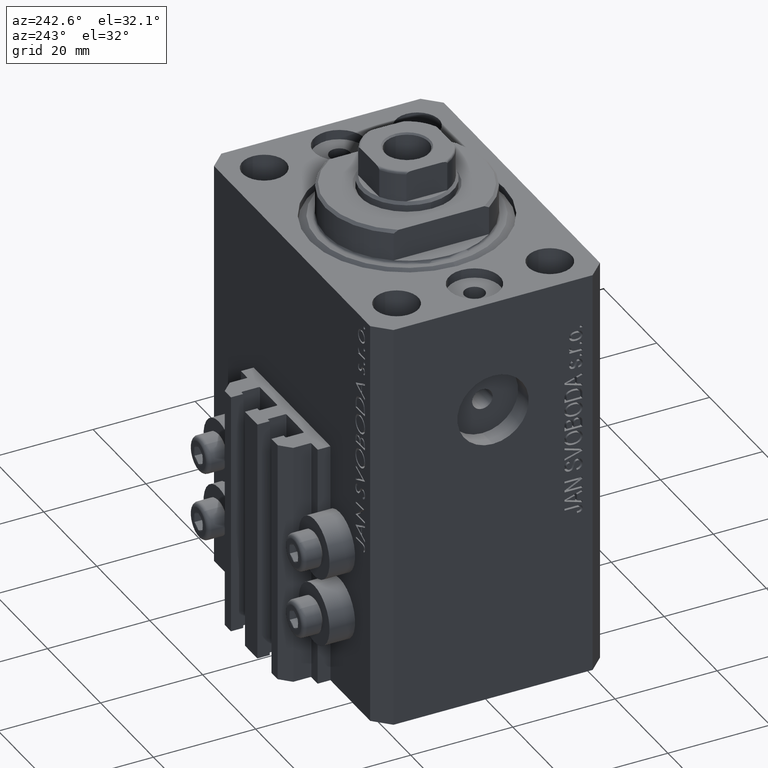
[diagram: clean part render]
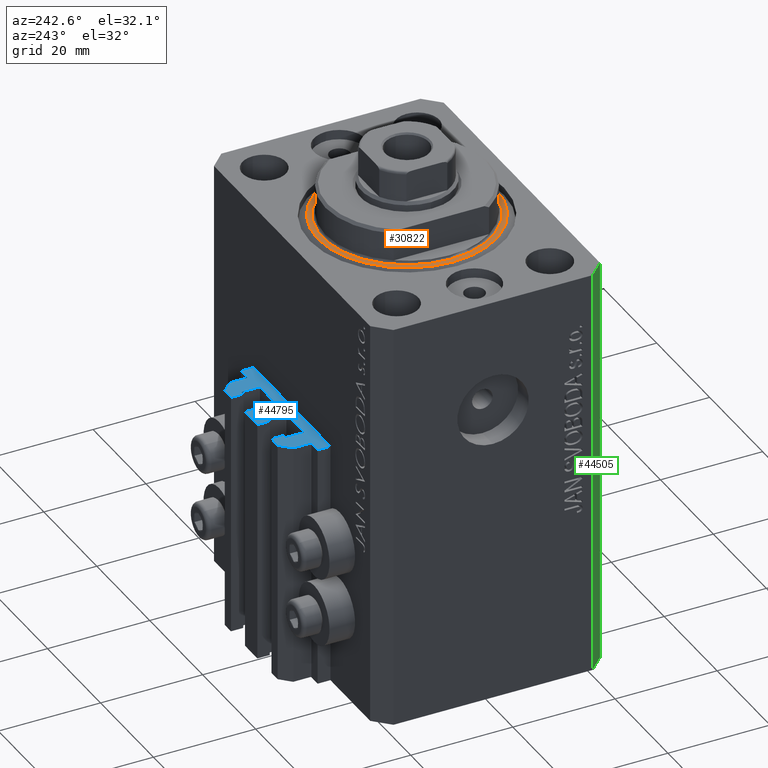
[diagram: same view with three faces highlighted in distinct colors, each labeled with its STEP entity id]
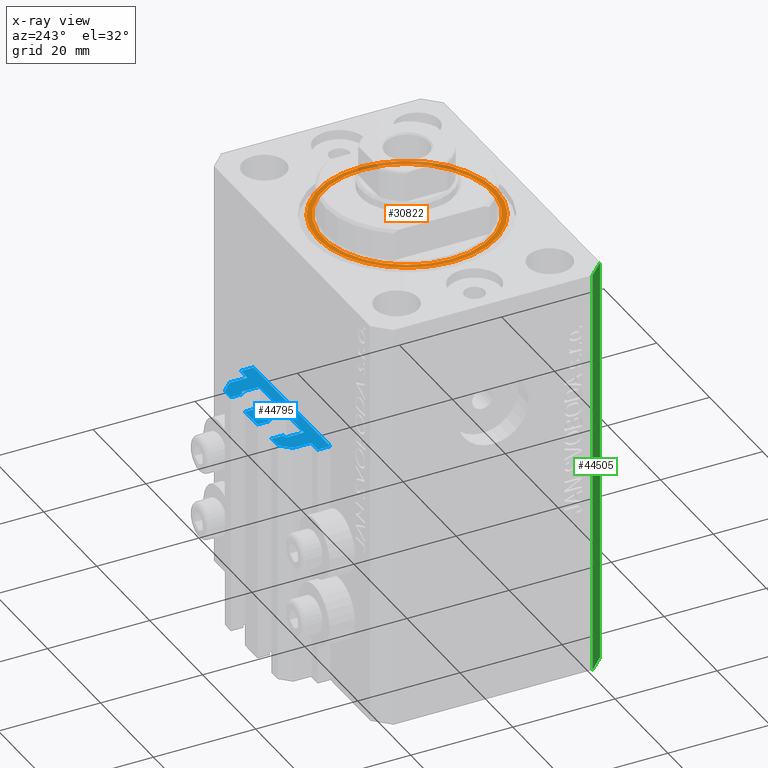
[diagram: x-ray of the same camera — body ghosted, the three highlighted faces saturated]
A machine part, auxiliary view with three faces highlighted in distinct colors.
The next image is the same camera in x-ray (body ghosted, the three faces saturated) — at least one of them is partly hidden behind the body in this view.
Their STEP definitions:

[orange] entity #30822 — the highlighted planar face has unit normal (0, 0, -1).
#469 = CARTESIAN_POINT ( 'NONE',  ( 0.000000000000000000, 0.000000000000000000, 0.000000000000000000 ) ) ;
#898 = EDGE_CURVE ( 'NONE', #35917, #40828, #39398, .T. ) ;
#1678 = CIRCLE ( 'NONE', #7025, 16.50000000000000000 ) ;
#3397 = AXIS2_PLACEMENT_3D ( 'NONE', #469, #14578, #22191 ) ;
#4816 = DIRECTION ( 'NONE',  ( 1.000000000000000000, 0.000000000000000000, 0.000000000000000000 ) ) ;
#7025 = AXIS2_PLACEMENT_3D ( 'NONE', #38832, #46238, #42653 ) ;
#7290 = FACE_OUTER_BOUND ( 'NONE', #20274, .T. ) ;
#8852 = CARTESIAN_POINT ( 'NONE',  ( 0.000000000000000000, 0.000000000000000000, 0.000000000000000000 ) ) ;
#9457 = CARTESIAN_POINT ( 'NONE',  ( 0.000000000000000000, 0.000000000000000000, 0.000000000000000000 ) ) ;
#10181 = DIRECTION ( 'NONE',  ( 0.000000000000000000, 0.000000000000000000, 1.000000000000000000 ) ) ;
#11776 = CARTESIAN_POINT ( 'NONE',  ( -17.49999999999999289, 2.234980408443919215E-15, 0.000000000000000000 ) ) ;
#13284 = ORIENTED_EDGE ( 'NONE', *, *, #43126, .T. ) ;
#14578 = DIRECTION ( 'NONE',  ( -0.000000000000000000, -0.000000000000000000, -1.000000000000000000 ) ) ;
#16493 = ORIENTED_EDGE ( 'NONE', *, *, #46163, .T. ) ;
#17320 = AXIS2_PLACEMENT_3D ( 'NONE', #9457, #10181, #23783 ) ;
#20274 = EDGE_LOOP ( 'NONE', ( #33626, #16493 ) ) ;
#20822 = EDGE_LOOP ( 'NONE', ( #43359, #13284 ) ) ;
#20863 = EDGE_CURVE ( 'NONE', #32727, #43330, #27977, .T. ) ;
#20934 = PLANE ( 'NONE',  #35720 ) ;
#21450 = CARTESIAN_POINT ( 'NONE',  ( 16.50000000000000000, 0.000000000000000000, 2.168404344971008868E-16 ) ) ;
#22191 = DIRECTION ( 'NONE',  ( 1.000000000000000000, 0.000000000000000000, 0.000000000000000000 ) ) ;
#22589 = AXIS2_PLACEMENT_3D ( 'NONE', #8852, #37489, #4816 ) ;
#23783 = DIRECTION ( 'NONE',  ( 1.000000000000000000, 0.000000000000000000, 0.000000000000000000 ) ) ;
#25420 = DIRECTION ( 'NONE',  ( 0.000000000000000000, 0.000000000000000000, 1.000000000000000000 ) ) ;
#25442 = CARTESIAN_POINT ( 'NONE',  ( -16.50000000000000000, 2.020667218593133100E-15, 2.168404344971008868E-16 ) ) ;
#27977 = CIRCLE ( 'NONE', #17320, 16.50000000000000000 ) ;
#30822 = ADVANCED_FACE ( 'NONE', ( #43334, #7290 ), #20934, .F. ) ;
#32727 = VERTEX_POINT ( 'NONE', #21450 ) ;
#32821 = CARTESIAN_POINT ( 'NONE',  ( 0.000000000000000000, 0.000000000000000000, 0.000000000000000000 ) ) ;
#33626 = ORIENTED_EDGE ( 'NONE', *, *, #898, .T. ) ;
#34625 = CARTESIAN_POINT ( 'NONE',  ( 17.49999999999999289, 0.000000000000000000, 0.000000000000000000 ) ) ;
#35720 = AXIS2_PLACEMENT_3D ( 'NONE', #32821, #25420, #42631 ) ;
#35917 = VERTEX_POINT ( 'NONE', #34625 ) ;
#36159 = CIRCLE ( 'NONE', #3397, 17.49999999999999289 ) ;
#37489 = DIRECTION ( 'NONE',  ( -0.000000000000000000, -0.000000000000000000, -1.000000000000000000 ) ) ;
#38832 = CARTESIAN_POINT ( 'NONE',  ( 0.000000000000000000, 0.000000000000000000, 0.000000000000000000 ) ) ;
#39398 = CIRCLE ( 'NONE', #22589, 17.49999999999999289 ) ;
#40828 = VERTEX_POINT ( 'NONE', #11776 ) ;
#42631 = DIRECTION ( 'NONE',  ( 1.000000000000000000, 0.000000000000000000, -0.000000000000000000 ) ) ;
#42653 = DIRECTION ( 'NONE',  ( 1.000000000000000000, 0.000000000000000000, 0.000000000000000000 ) ) ;
#43126 = EDGE_CURVE ( 'NONE', #43330, #32727, #1678, .T. ) ;
#43330 = VERTEX_POINT ( 'NONE', #25442 ) ;
#43334 = FACE_BOUND ( 'NONE', #20822, .T. ) ;
#43359 = ORIENTED_EDGE ( 'NONE', *, *, #20863, .T. ) ;
#46163 = EDGE_CURVE ( 'NONE', #40828, #35917, #36159, .T. ) ;
#46238 = DIRECTION ( 'NONE',  ( 0.000000000000000000, 0.000000000000000000, 1.000000000000000000 ) ) ;

[blue] entity #44795 — the highlighted planar face has unit normal (0, 0, 1).
#163 = VERTEX_POINT ( 'NONE', #8555 ) ;
#197 = VECTOR ( 'NONE', #1649, 1000.000000000000000 ) ;
#467 = CARTESIAN_POINT ( 'NONE',  ( -12.20000000000000107, 24.99999999999948841, -33.00000000000000000 ) ) ;
#704 = LINE ( 'NONE', #44375, #2030 ) ;
#714 = AXIS2_PLACEMENT_3D ( 'NONE', #15869, #30411, #11813 ) ;
#788 = CIRCLE ( 'NONE', #27467, 0.1999999999999979294 ) ;
#851 = CARTESIAN_POINT ( 'NONE',  ( 8.200000000000001066, 24.49999999999949196, -33.00000000000000000 ) ) ;
#1075 = VERTEX_POINT ( 'NONE', #10280 ) ;
#1188 = DIRECTION ( 'NONE',  ( 1.084202172485506406E-15, 1.000000000000000000, 0.000000000000000000 ) ) ;
#1446 = CARTESIAN_POINT ( 'NONE',  ( -10.00000000000000000, 30.49999999999948841, -33.00000000000000000 ) ) ;
#1503 = DIRECTION ( 'NONE',  ( 1.000000000000000000, 0.000000000000000000, 0.000000000000000000 ) ) ;
#1542 = VECTOR ( 'NONE', #38229, 1000.000000000000000 ) ;
#1649 = DIRECTION ( 'NONE',  ( -6.776263578034385456E-17, -1.000000000000000000, 0.000000000000000000 ) ) ;
#1726 = VERTEX_POINT ( 'NONE', #22194 ) ;
#1758 = ORIENTED_EDGE ( 'NONE', *, *, #4091, .F. ) ;
#1882 = VERTEX_POINT ( 'NONE', #5269 ) ;
#2006 = LINE ( 'NONE', #20632, #27532 ) ;
#2030 = VECTOR ( 'NONE', #8103, 1000.000000000000000 ) ;
#2031 = EDGE_CURVE ( 'NONE', #4540, #27955, #25112, .T. ) ;
#2055 = ORIENTED_EDGE ( 'NONE', *, *, #11549, .T. ) ;
#2688 = CARTESIAN_POINT ( 'NONE',  ( -1.800000000000000933, 27.89999999999950120, -33.00000000000000000 ) ) ;
#2782 = CARTESIAN_POINT ( 'NONE',  ( 12.00000000000000178, 25.19999999999951257, -33.00000000000000000 ) ) ;
#3170 = CARTESIAN_POINT ( 'NONE',  ( -1.800000000000000933, 28.09999999999949694, -33.00000000000000000 ) ) ;
#3305 = DIRECTION ( 'NONE',  ( 1.000000000000000000, 6.308085367188405427E-15, 0.000000000000000000 ) ) ;
#3343 = LINE ( 'NONE', #47230, #24034 ) ;
#3710 = LINE ( 'NONE', #2782, #12241 ) ;
#3928 = ORIENTED_EDGE ( 'NONE', *, *, #28306, .T. ) ;
#3936 = ORIENTED_EDGE ( 'NONE', *, *, #45269, .T. ) ;
#3953 = EDGE_CURVE ( 'NONE', #26961, #26832, #33517, .T. ) ;
#3999 = EDGE_CURVE ( 'NONE', #30012, #26034, #29666, .T. ) ;
#4091 = EDGE_CURVE ( 'NONE', #43884, #36139, #26716, .T. ) ;
#4267 = EDGE_CURVE ( 'NONE', #9591, #13774, #7888, .T. ) ;
#4291 = CARTESIAN_POINT ( 'NONE',  ( -8.399999999999996803, 27.89999999999948699, -33.00000000000000000 ) ) ;
#4365 = VERTEX_POINT ( 'NONE', #20300 ) ;
#4453 = VERTEX_POINT ( 'NONE', #14317 ) ;
#4540 = VERTEX_POINT ( 'NONE', #46759 ) ;
#5165 = ORIENTED_EDGE ( 'NONE', *, *, #20030, .T. ) ;
#5269 = CARTESIAN_POINT ( 'NONE',  ( -7.650000000000000355, 28.09999999999948628, -33.00000000000000000 ) ) ;
#5272 = VERTEX_POINT ( 'NONE', #851 ) ;
#5287 = EDGE_CURVE ( 'NONE', #21762, #1075, #29778, .T. ) ;
#5412 = CARTESIAN_POINT ( 'NONE',  ( -8.199999999999999289, 24.49999999999949551, -33.00000000000000000 ) ) ;
#5540 = ORIENTED_EDGE ( 'NONE', *, *, #21366, .T. ) ;
#6118 = CIRCLE ( 'NONE', #25924, 0.2000000000000005107 ) ;
#6122 = ORIENTED_EDGE ( 'NONE', *, *, #22131, .T. ) ;
#6500 = DIRECTION ( 'NONE',  ( 0.000000000000000000, 0.000000000000000000, 1.000000000000000000 ) ) ;
#6542 = ORIENTED_EDGE ( 'NONE', *, *, #22408, .T. ) ;
#6587 = DIRECTION ( 'NONE',  ( 0.000000000000000000, 1.000000000000000000, 0.000000000000000000 ) ) ;
#6751 = CARTESIAN_POINT ( 'NONE',  ( 8.400000000000000355, 24.69999999999949125, -33.00000000000000000 ) ) ;
#6938 = LINE ( 'NONE', #17694, #43144 ) ;
#7136 = LINE ( 'NONE', #46760, #46219 ) ;
#7302 = VECTOR ( 'NONE', #35170, 999.9999999999998863 ) ;
#7773 = ORIENTED_EDGE ( 'NONE', *, *, #39749, .T. ) ;
#7876 = CARTESIAN_POINT ( 'NONE',  ( -8.400000000000000355, 24.69999999999949480, -33.00000000000000000 ) ) ;
#7888 = LINE ( 'NONE', #19588, #35108 ) ;
#7936 = EDGE_CURVE ( 'NONE', #26034, #12103, #34400, .T. ) ;
#7986 = CARTESIAN_POINT ( 'NONE',  ( 1.600000000000000533, 27.89999999999950120, -33.00000000000000000 ) ) ;
#8103 = DIRECTION ( 'NONE',  ( -1.000000000000000000, 0.000000000000000000, 0.000000000000000000 ) ) ;
#8386 = FACE_OUTER_BOUND ( 'NONE', #38851, .T. ) ;
#8555 = CARTESIAN_POINT ( 'NONE',  ( 7.649999999999995026, 30.49999999999949196, -33.00000000000000000 ) ) ;
#8708 = ORIENTED_EDGE ( 'NONE', *, *, #39573, .T. ) ;
#9368 = AXIS2_PLACEMENT_3D ( 'NONE', #37491, #30573, #12213 ) ;
#9389 = VERTEX_POINT ( 'NONE', #7986 ) ;
#9591 = VERTEX_POINT ( 'NONE', #24681 ) ;
#9598 = EDGE_CURVE ( 'NONE', #20144, #10792, #17300, .T. ) ;
#9679 = ORIENTED_EDGE ( 'NONE', *, *, #37568, .F. ) ;
#10150 = DIRECTION ( 'NONE',  ( 1.000000000000000000, 0.000000000000000000, 0.000000000000000000 ) ) ;
#10280 = CARTESIAN_POINT ( 'NONE',  ( 8.200000000000001066, 28.09999999999950759, -33.00000000000000000 ) ) ;
#10792 = VERTEX_POINT ( 'NONE', #42829 ) ;
#11011 = EDGE_CURVE ( 'NONE', #4453, #9389, #37811, .T. ) ;
#11257 = CARTESIAN_POINT ( 'NONE',  ( 14.49999999999999822, 24.99999999999950617, -33.00000000000000000 ) ) ;
#11446 = EDGE_CURVE ( 'NONE', #20069, #20674, #33257, .T. ) ;
#11549 = EDGE_CURVE ( 'NONE', #44753, #34196, #7136, .T. ) ;
#11745 = CARTESIAN_POINT ( 'NONE',  ( -2.350000000000003197, 28.09999999999950049, -33.00000000000000000 ) ) ;
#11757 = ORIENTED_EDGE ( 'NONE', *, *, #5287, .F. ) ;
#11813 = DIRECTION ( 'NONE',  ( 1.000000000000000000, 0.000000000000000000, 0.000000000000000000 ) ) ;
#11978 = DIRECTION ( 'NONE',  ( 1.000000000000000000, -6.308085367188365195E-15, 0.000000000000000000 ) ) ;
#12103 = VERTEX_POINT ( 'NONE', #3170 ) ;
#12133 = DIRECTION ( 'NONE',  ( 0.000000000000000000, 0.000000000000000000, 1.000000000000000000 ) ) ;
#12213 = DIRECTION ( 'NONE',  ( 1.000000000000000000, 0.000000000000000000, -0.000000000000000000 ) ) ;
#12241 = VECTOR ( 'NONE', #6587, 1000.000000000000000 ) ;
#12546 = CARTESIAN_POINT ( 'NONE',  ( 14.49999999999999822, 24.99999999999950617, -33.00000000000000000 ) ) ;
#12954 = CARTESIAN_POINT ( 'NONE',  ( 8.400000000000000355, 27.89999999999950475, -33.00000000000000000 ) ) ;
#12963 = AXIS2_PLACEMENT_3D ( 'NONE', #19403, #33479, #41338 ) ;
#13141 = CARTESIAN_POINT ( 'NONE',  ( -8.199999999999999289, 24.69999999999949480, -33.00000000000000000 ) ) ;
#13161 = ORIENTED_EDGE ( 'NONE', *, *, #18934, .T. ) ;
#13324 = CARTESIAN_POINT ( 'NONE',  ( -8.199999999999997513, 28.09999999999948628, -33.00000000000000000 ) ) ;
#13505 = CARTESIAN_POINT ( 'NONE',  ( 8.200000000000001066, 27.89999999999950475, -33.00000000000000000 ) ) ;
#13664 = DIRECTION ( 'NONE',  ( -1.000000000000000000, 0.000000000000000000, 0.000000000000000000 ) ) ;
#13706 = VERTEX_POINT ( 'NONE', #29144 ) ;
#13774 = VERTEX_POINT ( 'NONE', #1446 ) ;
#13940 = DIRECTION ( 'NONE',  ( -1.000000000000000000, -1.476360405086644852E-15, 0.000000000000000000 ) ) ;
#14093 = CARTESIAN_POINT ( 'NONE',  ( -12.20000000000000107, 25.19999999999949125, -33.00000000000000000 ) ) ;
#14110 = CARTESIAN_POINT ( 'NONE',  ( 8.400000000000000355, 27.89999999999950475, -33.00000000000000000 ) ) ;
#14156 = LINE ( 'NONE', #24435, #27628 ) ;
#14317 = CARTESIAN_POINT ( 'NONE',  ( 1.800000000000000933, 28.09999999999950049, -33.00000000000000000 ) ) ;
#14548 = LINE ( 'NONE', #17665, #16094 ) ;
#14623 = CARTESIAN_POINT ( 'NONE',  ( -2.350000000000003197, 30.49999999999949907, -33.00000000000000000 ) ) ;
#14786 = DIRECTION ( 'NONE',  ( 0.000000000000000000, 1.000000000000000000, 0.000000000000000000 ) ) ;
#14849 = DIRECTION ( 'NONE',  ( -1.000000000000000000, 0.000000000000000000, 0.000000000000000000 ) ) ;
#14855 = DIRECTION ( 'NONE',  ( 1.000000000000000000, 0.000000000000000000, 0.000000000000000000 ) ) ;
#15292 = EDGE_CURVE ( 'NONE', #30012, #34196, #18900, .T. ) ;
#15333 = PLANE ( 'NONE',  #9368 ) ;
#15369 = DIRECTION ( 'NONE',  ( 0.000000000000000000, 0.000000000000000000, 1.000000000000000000 ) ) ;
#15869 = CARTESIAN_POINT ( 'NONE',  ( 1.800000000000000933, 24.69999999999949480, -33.00000000000000000 ) ) ;
#16094 = VECTOR ( 'NONE', #14786, 1000.000000000000000 ) ;
#16180 = ORIENTED_EDGE ( 'NONE', *, *, #7936, .T. ) ;
#16867 = ORIENTED_EDGE ( 'NONE', *, *, #2031, .F. ) ;
#16999 = CARTESIAN_POINT ( 'NONE',  ( -8.399999999999998579, 24.69999999999949480, -33.00000000000000000 ) ) ;
#17255 = DIRECTION ( 'NONE',  ( 1.000000000000000000, 0.000000000000000000, 0.000000000000000000 ) ) ;
#17300 = LINE ( 'NONE', #39222, #46180 ) ;
#17665 = CARTESIAN_POINT ( 'NONE',  ( -7.650000000000000355, 28.09999999999948628, -33.00000000000000000 ) ) ;
#17694 = CARTESIAN_POINT ( 'NONE',  ( 7.649999999999995026, 30.49999999999949196, -33.00000000000000000 ) ) ;
#18405 = EDGE_CURVE ( 'NONE', #30960, #1075, #3343, .T. ) ;
#18432 = LINE ( 'NONE', #11257, #19097 ) ;
#18637 = CARTESIAN_POINT ( 'NONE',  ( 1.800000000000000933, 24.49999999999949196, -33.00000000000000000 ) ) ;
#18740 = LINE ( 'NONE', #21613, #43874 ) ;
#18900 = LINE ( 'NONE', #14623, #29902 ) ;
#18925 = AXIS2_PLACEMENT_3D ( 'NONE', #21448, #28837, #32877 ) ;
#18934 = EDGE_CURVE ( 'NONE', #13774, #22730, #20384, .T. ) ;
#19097 = VECTOR ( 'NONE', #14849, 1000.000000000000000 ) ;
#19184 = ORIENTED_EDGE ( 'NONE', *, *, #34820, .T. ) ;
#19403 = CARTESIAN_POINT ( 'NONE',  ( 12.20000000000000284, 25.19999999999950546, -33.00000000000000000 ) ) ;
#19535 = DIRECTION ( 'NONE',  ( 1.000000000000000000, 0.000000000000000000, 0.000000000000000000 ) ) ;
#19588 = CARTESIAN_POINT ( 'NONE',  ( -7.650000000000000355, 30.49999999999948486, -33.00000000000000000 ) ) ;
#19646 = CARTESIAN_POINT ( 'NONE',  ( 1.800000000000000933, 27.89999999999950120, -33.00000000000000000 ) ) ;
#19831 = ORIENTED_EDGE ( 'NONE', *, *, #32418, .T. ) ;
#20030 = EDGE_CURVE ( 'NONE', #163, #30960, #6938, .T. ) ;
#20069 = VERTEX_POINT ( 'NONE', #16999 ) ;
#20144 = VERTEX_POINT ( 'NONE', #467 ) ;
#20300 = CARTESIAN_POINT ( 'NONE',  ( -1.600000000000000755, 24.69999999999949480, -33.00000000000000000 ) ) ;
#20331 = DIRECTION ( 'NONE',  ( 1.000000000000000000, 0.000000000000000000, 0.000000000000000000 ) ) ;
#20384 = LINE ( 'NONE', #20858, #7302 ) ;
#20541 = DIRECTION ( 'NONE',  ( 0.000000000000000000, 0.000000000000000000, 1.000000000000000000 ) ) ;
#20632 = CARTESIAN_POINT ( 'NONE',  ( 12.00000000000000178, 28.49999999999950973, -33.00000000000000000 ) ) ;
#20674 = VERTEX_POINT ( 'NONE', #5412 ) ;
#20858 = CARTESIAN_POINT ( 'NONE',  ( -10.00000000000000000, 30.49999999999948841, -33.00000000000000000 ) ) ;
#21366 = EDGE_CURVE ( 'NONE', #32668, #1726, #45478, .T. ) ;
#21448 = CARTESIAN_POINT ( 'NONE',  ( 8.200000000000001066, 24.69999999999949125, -33.00000000000000000 ) ) ;
#21613 = CARTESIAN_POINT ( 'NONE',  ( -12.00000000000000000, 28.49999999999948841, -33.00000000000000000 ) ) ;
#21762 = VERTEX_POINT ( 'NONE', #14110 ) ;
#21786 = CARTESIAN_POINT ( 'NONE',  ( -12.00000000000000000, 28.49999999999948841, -33.00000000000000000 ) ) ;
#21868 = EDGE_CURVE ( 'NONE', #5272, #27955, #704, .T. ) ;
#21900 = ORIENTED_EDGE ( 'NONE', *, *, #34395, .F. ) ;
#22069 = DIRECTION ( 'NONE',  ( 0.000000000000000000, -1.000000000000000000, 0.000000000000000000 ) ) ;
#22104 = AXIS2_PLACEMENT_3D ( 'NONE', #31560, #6500, #24170 ) ;
#22131 = EDGE_CURVE ( 'NONE', #10792, #32668, #29289, .T. ) ;
#22171 = DIRECTION ( 'NONE',  ( 0.000000000000000000, 0.000000000000000000, 1.000000000000000000 ) ) ;
#22194 = CARTESIAN_POINT ( 'NONE',  ( 14.49999999999999645, 22.49999999999949907, -33.00000000000000000 ) ) ;
#22288 = ORIENTED_EDGE ( 'NONE', *, *, #36902, .T. ) ;
#22408 = EDGE_CURVE ( 'NONE', #22730, #13706, #18740, .T. ) ;
#22517 = VECTOR ( 'NONE', #25946, 1000.000000000000000 ) ;
#22620 = VERTEX_POINT ( 'NONE', #23244 ) ;
#22730 = VERTEX_POINT ( 'NONE', #21786 ) ;
#23244 = CARTESIAN_POINT ( 'NONE',  ( -1.600000000000003197, 27.89999999999950120, -33.00000000000000000 ) ) ;
#23352 = ORIENTED_EDGE ( 'NONE', *, *, #44591, .T. ) ;
#23680 = VECTOR ( 'NONE', #3305, 1000.000000000000000 ) ;
#24034 = VECTOR ( 'NONE', #28635, 1000.000000000000000 ) ;
#24136 = LINE ( 'NONE', #42256, #43310 ) ;
#24148 = AXIS2_PLACEMENT_3D ( 'NONE', #19646, #15369, #1503 ) ;
#24170 = DIRECTION ( 'NONE',  ( 1.000000000000000000, 0.000000000000000000, 0.000000000000000000 ) ) ;
#24259 = CARTESIAN_POINT ( 'NONE',  ( -2.350000000000003197, 30.49999999999949907, -33.00000000000000000 ) ) ;
#24282 = DIRECTION ( 'NONE',  ( 0.000000000000000000, 1.000000000000000000, 0.000000000000000000 ) ) ;
#24435 = CARTESIAN_POINT ( 'NONE',  ( 9.999999999999994671, 30.49999999999949551, -33.00000000000000000 ) ) ;
#24681 = CARTESIAN_POINT ( 'NONE',  ( -7.650000000000000355, 30.49999999999948486, -33.00000000000000000 ) ) ;
#24963 = ORIENTED_EDGE ( 'NONE', *, *, #29460, .T. ) ;
#25112 = CIRCLE ( 'NONE', #714, 0.2000000000000016209 ) ;
#25385 = VERTEX_POINT ( 'NONE', #39179 ) ;
#25924 = AXIS2_PLACEMENT_3D ( 'NONE', #14093, #22171, #44117 ) ;
#25946 = DIRECTION ( 'NONE',  ( 0.000000000000000000, -1.000000000000000000, 0.000000000000000000 ) ) ;
#26034 = VERTEX_POINT ( 'NONE', #38830 ) ;
#26308 = ORIENTED_EDGE ( 'NONE', *, *, #37415, .T. ) ;
#26674 = VECTOR ( 'NONE', #34186, 1000.000000000000000 ) ;
#26716 = CIRCLE ( 'NONE', #22104, 0.1999999999999987899 ) ;
#26743 = CIRCLE ( 'NONE', #40472, 0.1999999999999994282 ) ;
#26832 = VERTEX_POINT ( 'NONE', #40680 ) ;
#26961 = VERTEX_POINT ( 'NONE', #35658 ) ;
#27020 = LINE ( 'NONE', #12954, #1542 ) ;
#27036 = ORIENTED_EDGE ( 'NONE', *, *, #11011, .F. ) ;
#27137 = EDGE_CURVE ( 'NONE', #25385, #20674, #27984, .T. ) ;
#27321 = DIRECTION ( 'NONE',  ( 0.000000000000000000, 0.000000000000000000, 1.000000000000000000 ) ) ;
#27467 = AXIS2_PLACEMENT_3D ( 'NONE', #2688, #38705, #17255 ) ;
#27532 = VECTOR ( 'NONE', #46386, 1000.000000000000000 ) ;
#27628 = VECTOR ( 'NONE', #13940, 1000.000000000000000 ) ;
#27955 = VERTEX_POINT ( 'NONE', #18637 ) ;
#27984 = LINE ( 'NONE', #42519, #38674 ) ;
#28051 = CARTESIAN_POINT ( 'NONE',  ( 9.999999999999994671, 30.49999999999949551, -33.00000000000000000 ) ) ;
#28106 = LINE ( 'NONE', #31197, #43278 ) ;
#28306 = EDGE_CURVE ( 'NONE', #4540, #9389, #28106, .T. ) ;
#28635 = DIRECTION ( 'NONE',  ( 1.000000000000000000, 6.308085367188338373E-15, 0.000000000000000000 ) ) ;
#28837 = DIRECTION ( 'NONE',  ( 0.000000000000000000, 0.000000000000000000, 1.000000000000000000 ) ) ;
#29144 = CARTESIAN_POINT ( 'NONE',  ( -12.00000000000000000, 25.19999999999949125, -33.00000000000000000 ) ) ;
#29289 = LINE ( 'NONE', #37154, #22517 ) ;
#29392 = CARTESIAN_POINT ( 'NONE',  ( 2.349999999999999645, 28.09999999999950049, -33.00000000000000000 ) ) ;
#29460 = EDGE_CURVE ( 'NONE', #43884, #1882, #24136, .T. ) ;
#29666 = LINE ( 'NONE', #37756, #26674 ) ;
#29778 = CIRCLE ( 'NONE', #36620, 0.2000000000000005107 ) ;
#29902 = VECTOR ( 'NONE', #14855, 1000.000000000000000 ) ;
#30012 = VERTEX_POINT ( 'NONE', #24259 ) ;
#30049 = LINE ( 'NONE', #33392, #197 ) ;
#30089 = VECTOR ( 'NONE', #11978, 1000.000000000000000 ) ;
#30411 = DIRECTION ( 'NONE',  ( 0.000000000000000000, 0.000000000000000000, 1.000000000000000000 ) ) ;
#30535 = EDGE_CURVE ( 'NONE', #5272, #34741, #31908, .T. ) ;
#30573 = DIRECTION ( 'NONE',  ( 0.000000000000000000, 0.000000000000000000, 1.000000000000000000 ) ) ;
#30790 = ORIENTED_EDGE ( 'NONE', *, *, #15292, .F. ) ;
#30960 = VERTEX_POINT ( 'NONE', #40214 ) ;
#31141 = ORIENTED_EDGE ( 'NONE', *, *, #30535, .F. ) ;
#31197 = CARTESIAN_POINT ( 'NONE',  ( 1.600000000000000533, 24.69999999999949480, -33.00000000000000000 ) ) ;
#31560 = CARTESIAN_POINT ( 'NONE',  ( -8.199999999999997513, 27.89999999999948699, -33.00000000000000000 ) ) ;
#31908 = CIRCLE ( 'NONE', #18925, 0.1999999999999987899 ) ;
#32209 = CARTESIAN_POINT ( 'NONE',  ( 14.49999999999999645, 22.49999999999949907, -33.00000000000000000 ) ) ;
#32418 = EDGE_CURVE ( 'NONE', #20069, #36139, #33878, .T. ) ;
#32668 = VERTEX_POINT ( 'NONE', #46742 ) ;
#32860 = ORIENTED_EDGE ( 'NONE', *, *, #3953, .F. ) ;
#32877 = DIRECTION ( 'NONE',  ( 1.000000000000000000, 0.000000000000000000, 0.000000000000000000 ) ) ;
#33257 = CIRCLE ( 'NONE', #39360, 0.1999999999999987899 ) ;
#33392 = CARTESIAN_POINT ( 'NONE',  ( -1.600000000000000533, 27.89999999999950120, -33.00000000000000000 ) ) ;
#33479 = DIRECTION ( 'NONE',  ( 0.000000000000000000, 0.000000000000000000, 1.000000000000000000 ) ) ;
#33517 = CIRCLE ( 'NONE', #12963, 0.1999999999999987899 ) ;
#33714 = CARTESIAN_POINT ( 'NONE',  ( 2.349999999999999645, 30.49999999999949907, -33.00000000000000000 ) ) ;
#33737 = ORIENTED_EDGE ( 'NONE', *, *, #18405, .T. ) ;
#33878 = LINE ( 'NONE', #7876, #44143 ) ;
#34030 = VERTEX_POINT ( 'NONE', #28051 ) ;
#34136 = ORIENTED_EDGE ( 'NONE', *, *, #3999, .T. ) ;
#34186 = DIRECTION ( 'NONE',  ( 0.000000000000000000, -1.000000000000000000, 0.000000000000000000 ) ) ;
#34196 = VERTEX_POINT ( 'NONE', #33714 ) ;
#34335 = EDGE_CURVE ( 'NONE', #21762, #34741, #27020, .T. ) ;
#34395 = EDGE_CURVE ( 'NONE', #22620, #12103, #788, .T. ) ;
#34400 = LINE ( 'NONE', #11745, #30089 ) ;
#34513 = VERTEX_POINT ( 'NONE', #12546 ) ;
#34669 = ORIENTED_EDGE ( 'NONE', *, *, #27137, .T. ) ;
#34741 = VERTEX_POINT ( 'NONE', #6751 ) ;
#34820 = EDGE_CURVE ( 'NONE', #34513, #26832, #18432, .T. ) ;
#35085 = DIRECTION ( 'NONE',  ( 1.000000000000000000, 0.000000000000000000, 0.000000000000000000 ) ) ;
#35108 = VECTOR ( 'NONE', #37231, 1000.000000000000000 ) ;
#35116 = EDGE_CURVE ( 'NONE', #20144, #13706, #6118, .T. ) ;
#35170 = DIRECTION ( 'NONE',  ( -0.7071067811865472397, -0.7071067811865479058, 0.000000000000000000 ) ) ;
#35566 = VERTEX_POINT ( 'NONE', #46838 ) ;
#35658 = CARTESIAN_POINT ( 'NONE',  ( 12.00000000000000355, 25.19999999999951257, -33.00000000000000000 ) ) ;
#35753 = CARTESIAN_POINT ( 'NONE',  ( 1.800000000000000933, 28.09999999999949694, -33.00000000000000000 ) ) ;
#35982 = ORIENTED_EDGE ( 'NONE', *, *, #35116, .F. ) ;
#35986 = LINE ( 'NONE', #35753, #23680 ) ;
#36021 = LINE ( 'NONE', #32209, #44176 ) ;
#36139 = VERTEX_POINT ( 'NONE', #4291 ) ;
#36326 = VECTOR ( 'NONE', #41890, 1000.000000000000000 ) ;
#36349 = ORIENTED_EDGE ( 'NONE', *, *, #11446, .F. ) ;
#36620 = AXIS2_PLACEMENT_3D ( 'NONE', #13505, #27321, #10150 ) ;
#36902 = EDGE_CURVE ( 'NONE', #35566, #34030, #2006, .T. ) ;
#37154 = CARTESIAN_POINT ( 'NONE',  ( -14.50000000000000000, 24.99999999999949196, -33.00000000000000000 ) ) ;
#37231 = DIRECTION ( 'NONE',  ( -1.000000000000000000, 1.476360405086644852E-15, 0.000000000000000000 ) ) ;
#37415 = EDGE_CURVE ( 'NONE', #1882, #9591, #14548, .T. ) ;
#37446 = EDGE_CURVE ( 'NONE', #1726, #34513, #36021, .T. ) ;
#37491 = CARTESIAN_POINT ( 'NONE',  ( 12.20000000000000284, 25.19999999999950546, -33.00000000000000000 ) ) ;
#37568 = EDGE_CURVE ( 'NONE', #25385, #4365, #26743, .T. ) ;
#37756 = CARTESIAN_POINT ( 'NONE',  ( -2.350000000000003197, 30.49999999999949907, -33.00000000000000000 ) ) ;
#37811 = CIRCLE ( 'NONE', #24148, 0.1999999999999981515 ) ;
#38229 = DIRECTION ( 'NONE',  ( -5.421010862427496532E-16, -1.000000000000000000, 0.000000000000000000 ) ) ;
#38674 = VECTOR ( 'NONE', #13664, 1000.000000000000000 ) ;
#38705 = DIRECTION ( 'NONE',  ( 0.000000000000000000, 0.000000000000000000, 1.000000000000000000 ) ) ;
#38747 = ORIENTED_EDGE ( 'NONE', *, *, #34335, .T. ) ;
#38830 = CARTESIAN_POINT ( 'NONE',  ( -2.350000000000003197, 28.09999999999950049, -33.00000000000000000 ) ) ;
#38851 = EDGE_LOOP ( 'NONE', ( #6122, #5540, #40965, #19184, #32860, #7773, #22288, #23352, #5165, #33737, #11757, #38747, #31141, #43251, #16867, #3928, #27036, #8708, #2055, #30790, #34136, #16180, #21900, #3936, #9679, #34669, #36349, #19831, #1758, #24963, #26308, #39493, #13161, #6542, #35982, #40182 ) ) ;
#39179 = CARTESIAN_POINT ( 'NONE',  ( -1.800000000000000933, 24.49999999999949551, -33.00000000000000000 ) ) ;
#39222 = CARTESIAN_POINT ( 'NONE',  ( -12.20000000000000107, 24.99999999999948841, -33.00000000000000000 ) ) ;
#39360 = AXIS2_PLACEMENT_3D ( 'NONE', #13141, #20541, #35085 ) ;
#39462 = DIRECTION ( 'NONE',  ( -1.000000000000000000, 1.508455196501571429E-15, 0.000000000000000000 ) ) ;
#39493 = ORIENTED_EDGE ( 'NONE', *, *, #4267, .T. ) ;
#39573 = EDGE_CURVE ( 'NONE', #4453, #44753, #35986, .T. ) ;
#39597 = DIRECTION ( 'NONE',  ( 6.938893903907212600E-16, 1.000000000000000000, 0.000000000000000000 ) ) ;
#39749 = EDGE_CURVE ( 'NONE', #26961, #35566, #3710, .T. ) ;
#40182 = ORIENTED_EDGE ( 'NONE', *, *, #9598, .T. ) ;
#40214 = CARTESIAN_POINT ( 'NONE',  ( 7.649999999999995914, 28.09999999999950404, -33.00000000000000000 ) ) ;
#40472 = AXIS2_PLACEMENT_3D ( 'NONE', #44349, #12133, #19535 ) ;
#40680 = CARTESIAN_POINT ( 'NONE',  ( 12.20000000000000284, 24.99999999999950617, -33.00000000000000000 ) ) ;
#40965 = ORIENTED_EDGE ( 'NONE', *, *, #37446, .T. ) ;
#41338 = DIRECTION ( 'NONE',  ( 1.000000000000000000, 0.000000000000000000, 0.000000000000000000 ) ) ;
#41651 = CARTESIAN_POINT ( 'NONE',  ( -14.50000000000000000, 22.49999999999949907, -33.00000000000000000 ) ) ;
#41890 = DIRECTION ( 'NONE',  ( 1.000000000000000000, 0.000000000000000000, 0.000000000000000000 ) ) ;
#42256 = CARTESIAN_POINT ( 'NONE',  ( -8.199999999999997513, 28.09999999999948628, -33.00000000000000000 ) ) ;
#42519 = CARTESIAN_POINT ( 'NONE',  ( -1.800000000000000933, 24.49999999999949551, -33.00000000000000000 ) ) ;
#42829 = CARTESIAN_POINT ( 'NONE',  ( -14.50000000000000000, 24.99999999999949196, -33.00000000000000000 ) ) ;
#43144 = VECTOR ( 'NONE', #47026, 1000.000000000000000 ) ;
#43251 = ORIENTED_EDGE ( 'NONE', *, *, #21868, .T. ) ;
#43278 = VECTOR ( 'NONE', #24282, 1000.000000000000000 ) ;
#43310 = VECTOR ( 'NONE', #20331, 1000.000000000000000 ) ;
#43409 = DIRECTION ( 'NONE',  ( 0.000000000000000000, 1.000000000000000000, 0.000000000000000000 ) ) ;
#43874 = VECTOR ( 'NONE', #22069, 1000.000000000000000 ) ;
#43884 = VERTEX_POINT ( 'NONE', #13324 ) ;
#44117 = DIRECTION ( 'NONE',  ( 1.000000000000000000, 0.000000000000000000, 0.000000000000000000 ) ) ;
#44143 = VECTOR ( 'NONE', #1188, 1000.000000000000000 ) ;
#44176 = VECTOR ( 'NONE', #39597, 1000.000000000000000 ) ;
#44349 = CARTESIAN_POINT ( 'NONE',  ( -1.800000000000000933, 24.69999999999949480, -33.00000000000000000 ) ) ;
#44375 = CARTESIAN_POINT ( 'NONE',  ( 8.200000000000001066, 24.49999999999949196, -33.00000000000000000 ) ) ;
#44591 = EDGE_CURVE ( 'NONE', #34030, #163, #14156, .T. ) ;
#44753 = VERTEX_POINT ( 'NONE', #29392 ) ;
#44795 = ADVANCED_FACE ( 'NONE', ( #8386 ), #15333, .T. ) ;
#45269 = EDGE_CURVE ( 'NONE', #22620, #4365, #30049, .T. ) ;
#45478 = LINE ( 'NONE', #41651, #36326 ) ;
#46180 = VECTOR ( 'NONE', #39462, 1000.000000000000000 ) ;
#46219 = VECTOR ( 'NONE', #43409, 1000.000000000000000 ) ;
#46386 = DIRECTION ( 'NONE',  ( -0.7071067811865507924, 0.7071067811865441310, 0.000000000000000000 ) ) ;
#46742 = CARTESIAN_POINT ( 'NONE',  ( -14.50000000000000000, 22.49999999999949907, -33.00000000000000000 ) ) ;
#46759 = CARTESIAN_POINT ( 'NONE',  ( 1.599999999999999645, 24.69999999999949480, -33.00000000000000000 ) ) ;
#46760 = CARTESIAN_POINT ( 'NONE',  ( 2.349999999999999645, 28.09999999999950049, -33.00000000000000000 ) ) ;
#46838 = CARTESIAN_POINT ( 'NONE',  ( 12.00000000000000178, 28.49999999999950973, -33.00000000000000000 ) ) ;
#47026 = DIRECTION ( 'NONE',  ( 3.614007241618365534E-16, -1.000000000000000000, 0.000000000000000000 ) ) ;
#47230 = CARTESIAN_POINT ( 'NONE',  ( 7.649999999999995914, 28.09999999999950404, -33.00000000000000000 ) ) ;

[green] entity #44505 — the highlighted planar face has unit normal (-0.7071, -0.7071, 0).
#4657 = LINE ( 'NONE', #14705, #37228 ) ;
#4867 = DIRECTION ( 'NONE',  ( 0.7071067811865474617, -0.7071067811865474617, 0.000000000000000000 ) ) ;
#4886 = DIRECTION ( 'NONE',  ( 0.7071067811865474617, -0.7071067811865474617, 0.000000000000000000 ) ) ;
#4959 = VECTOR ( 'NONE', #29011, 1000.000000000000000 ) ;
#6317 = DIRECTION ( 'NONE',  ( 0.7071067811865474617, -0.7071067811865474617, 0.000000000000000000 ) ) ;
#9144 = DIRECTION ( 'NONE',  ( -0.7071067811865475727, -0.7071067811865475727, 0.000000000000000000 ) ) ;
#10869 = LINE ( 'NONE', #46911, #19580 ) ;
#12106 = VECTOR ( 'NONE', #6317, 1000.000000000000114 ) ;
#12907 = VERTEX_POINT ( 'NONE', #44750 ) ;
#13419 = CARTESIAN_POINT ( 'NONE',  ( -29.49999999999650413, -22.49999999999949907, 0.000000000000000000 ) ) ;
#14472 = CARTESIAN_POINT ( 'NONE',  ( -32.49999999999650413, -19.49999999999949907, -81.00000000000000000 ) ) ;
#14705 = CARTESIAN_POINT ( 'NONE',  ( -32.49999999999650413, -19.49999999999949907, -81.00000000000000000 ) ) ;
#17171 = EDGE_CURVE ( 'NONE', #24048, #36076, #42873, .T. ) ;
#18042 = DIRECTION ( 'NONE',  ( 0.000000000000000000, 0.000000000000000000, 1.000000000000000000 ) ) ;
#18597 = ORIENTED_EDGE ( 'NONE', *, *, #31273, .F. ) ;
#19580 = VECTOR ( 'NONE', #18042, 1000.000000000000000 ) ;
#19664 = CARTESIAN_POINT ( 'NONE',  ( -32.49999999999650413, -19.49999999999949907, -81.00000000000000000 ) ) ;
#20886 = EDGE_CURVE ( 'NONE', #12907, #32107, #10869, .T. ) ;
#24048 = VERTEX_POINT ( 'NONE', #41615 ) ;
#26574 = PLANE ( 'NONE',  #38282 ) ;
#26815 = FACE_OUTER_BOUND ( 'NONE', #38915, .T. ) ;
#26957 = ORIENTED_EDGE ( 'NONE', *, *, #17171, .F. ) ;
#28273 = LINE ( 'NONE', #32303, #12106 ) ;
#29011 = DIRECTION ( 'NONE',  ( 0.000000000000000000, 0.000000000000000000, 1.000000000000000000 ) ) ;
#30768 = ORIENTED_EDGE ( 'NONE', *, *, #30955, .T. ) ;
#30955 = EDGE_CURVE ( 'NONE', #24048, #12907, #4657, .T. ) ;
#31273 = EDGE_CURVE ( 'NONE', #36076, #32107, #28273, .T. ) ;
#31773 = ORIENTED_EDGE ( 'NONE', *, *, #20886, .T. ) ;
#32107 = VERTEX_POINT ( 'NONE', #13419 ) ;
#32303 = CARTESIAN_POINT ( 'NONE',  ( -32.49999999999650413, -19.49999999999949907, 0.000000000000000000 ) ) ;
#36076 = VERTEX_POINT ( 'NONE', #45841 ) ;
#37228 = VECTOR ( 'NONE', #4886, 1000.000000000000114 ) ;
#38282 = AXIS2_PLACEMENT_3D ( 'NONE', #19664, #9144, #4867 ) ;
#38915 = EDGE_LOOP ( 'NONE', ( #18597, #26957, #30768, #31773 ) ) ;
#41615 = CARTESIAN_POINT ( 'NONE',  ( -32.49999999999650413, -19.49999999999949907, -81.00000000000000000 ) ) ;
#42873 = LINE ( 'NONE', #14472, #4959 ) ;
#44505 = ADVANCED_FACE ( 'NONE', ( #26815 ), #26574, .T. ) ;
#44750 = CARTESIAN_POINT ( 'NONE',  ( -29.49999999999650413, -22.49999999999949907, -81.00000000000000000 ) ) ;
#45841 = CARTESIAN_POINT ( 'NONE',  ( -32.49999999999650413, -19.49999999999949907, 0.000000000000000000 ) ) ;
#46911 = CARTESIAN_POINT ( 'NONE',  ( -29.49999999999650413, -22.49999999999949907, -81.00000000000000000 ) ) ;